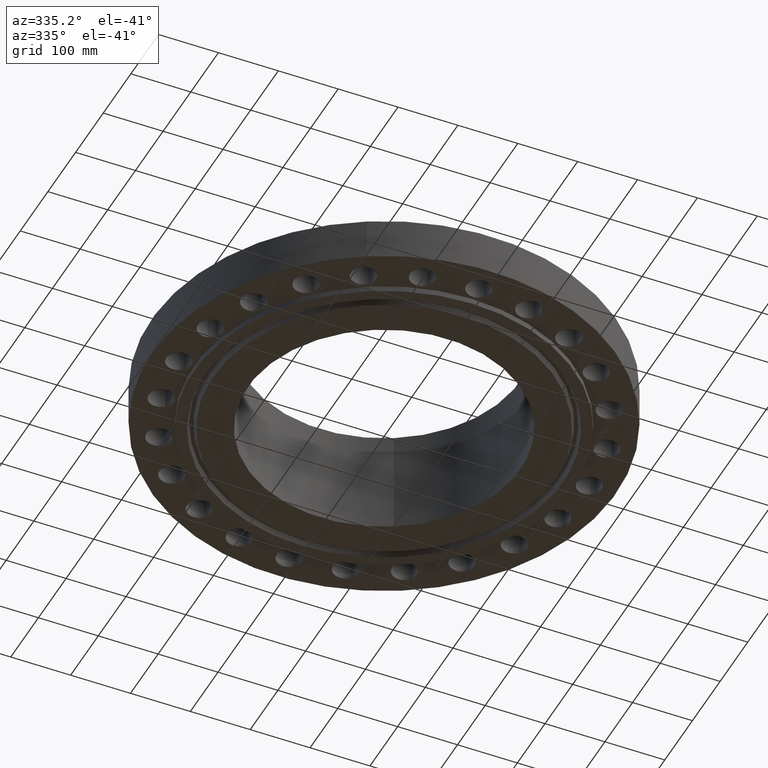
[diagram: clean part render]
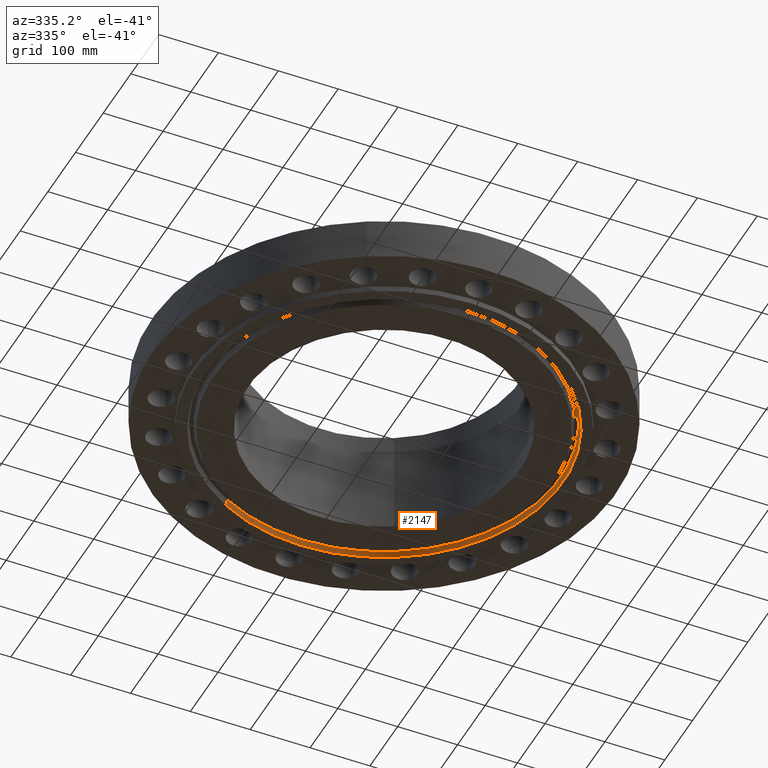
[diagram: same view with one face highlighted and labeled with its STEP entity id]
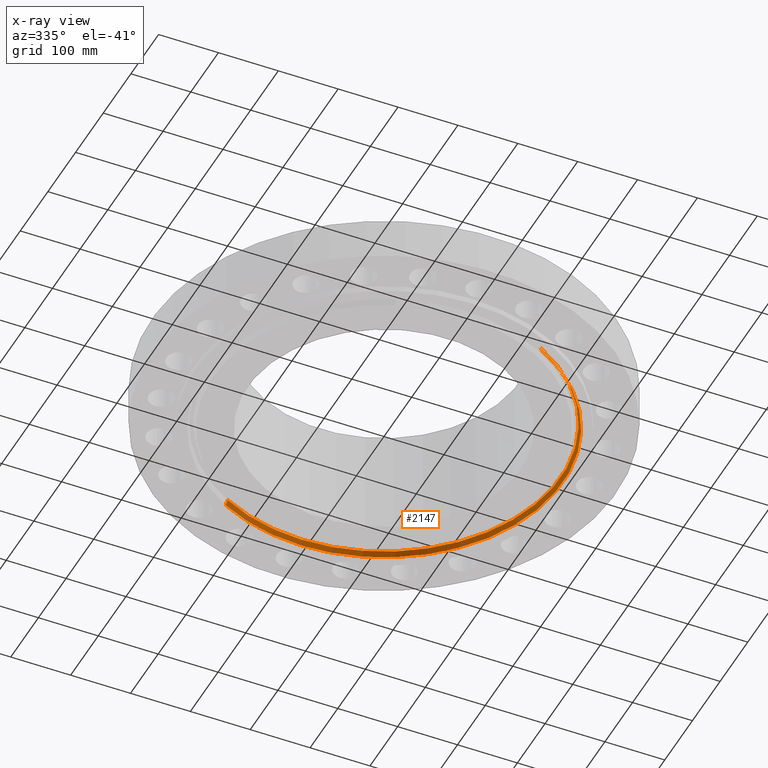
[diagram: x-ray of the same camera — body ghosted, the highlighted face saturated]
A machine part, auxiliary view. The second image highlights one B-rep face of the part: STEP entity #2147.
The next image is the same camera in x-ray: the body ghosted, the highlighted face saturated — about 0% of this face is hidden behind the body in this view.
In plain terms, the highlighted conical surface has half-angle 23 deg.
Its self-contained STEP definition (entity closure, byte-faithful):
#2008=AXIS2_PLACEMENT_3D('Circle Axis2P3D',#2006,#2007,$) ;
#2082=AXIS2_PLACEMENT_3D('Cone Axis2P3D',#2079,#2080,#2081) ;
#2103=AXIS2_PLACEMENT_3D('Circle Axis2P3D',#2101,#2102,$) ;
#2001=CARTESIAN_POINT('Vertex',(5.64068117447,-10.325197632,-0.375000000001)) ;
#2003=CARTESIAN_POINT('Vertex',(-5.64068117447,10.325197632,-0.375000000001)) ;
#2006=CARTESIAN_POINT('Axis2P3D Location',(-1.39870617276E-015,-2.23792987641E-015,-0.375000000001)) ;
#2048=CARTESIAN_POINT('Vertex',(-5.57217843689,10.1998042119,-0.0383839389053)) ;
#2050=CARTESIAN_POINT('Vertex',(5.57217843689,-10.1998042119,-0.0383839389053)) ;
#2079=CARTESIAN_POINT('Axis2P3D Location',(0.,0.,-0.0383839389053)) ;
#2084=CARTESIAN_POINT('Line Origine',(-5.60642980568,10.2625009219,-0.206691969453)) ;
#2089=CARTESIAN_POINT('Line Origine',(5.60642980568,-10.2625009219,-0.206691969453)) ;
#2101=CARTESIAN_POINT('Axis2P3D Location',(0.,0.,-0.0383839389053)) ;
#2007=DIRECTION('Axis2P3D Direction',(0.,0.,-0.0393700787402)) ;
#2080=DIRECTION('Axis2P3D Direction',(-0.,-0.,-0.0393700787402)) ;
#2081=DIRECTION('Axis2P3D XDirection',(-0.0188750212049,0.0345504945626,0.)) ;
#2085=DIRECTION('Vector Direction',(-0.00737505833565,0.0134999537303,-0.0362403485611)) ;
#2090=DIRECTION('Vector Direction',(0.00737505833565,-0.0134999537303,-0.0362403485611)) ;
#2102=DIRECTION('Axis2P3D Direction',(0.,0.,0.0393700787402)) ;
#2086=VECTOR('Line Direction',#2085,0.0393700787402) ;
#2091=VECTOR('Line Direction',#2090,0.0393700787402) ;
#2142=ORIENTED_EDGE('',*,*,#2010,.T.) ;
#2143=ORIENTED_EDGE('',*,*,#2093,.T.) ;
#2144=ORIENTED_EDGE('',*,*,#2105,.T.) ;
#2145=ORIENTED_EDGE('',*,*,#2088,.F.) ;
#2147=ADVANCED_FACE('PartBody',(#2146),#2083,.F.) ;
#2009=CIRCLE('generated circle',#2008,11.7655) ;
#2104=CIRCLE('generated circle',#2103,11.6226149594) ;
#2083=CONICAL_SURFACE('Cone',#2082,11.6226149594,0.401425727959) ;
#2010=EDGE_CURVE('',#2004,#2002,#2009,.T.) ;
#2088=EDGE_CURVE('',#2004,#2049,#2087,.F.) ;
#2093=EDGE_CURVE('',#2002,#2051,#2092,.F.) ;
#2105=EDGE_CURVE('',#2051,#2049,#2104,.T.) ;
#2141=EDGE_LOOP('',(#2142,#2143,#2144,#2145)) ;
#2146=FACE_OUTER_BOUND('',#2141,.T.) ;
#2087=LINE('Line',#2084,#2086) ;
#2092=LINE('Line',#2089,#2091) ;
#2002=VERTEX_POINT('',#2001) ;
#2004=VERTEX_POINT('',#2003) ;
#2049=VERTEX_POINT('',#2048) ;
#2051=VERTEX_POINT('',#2050) ;